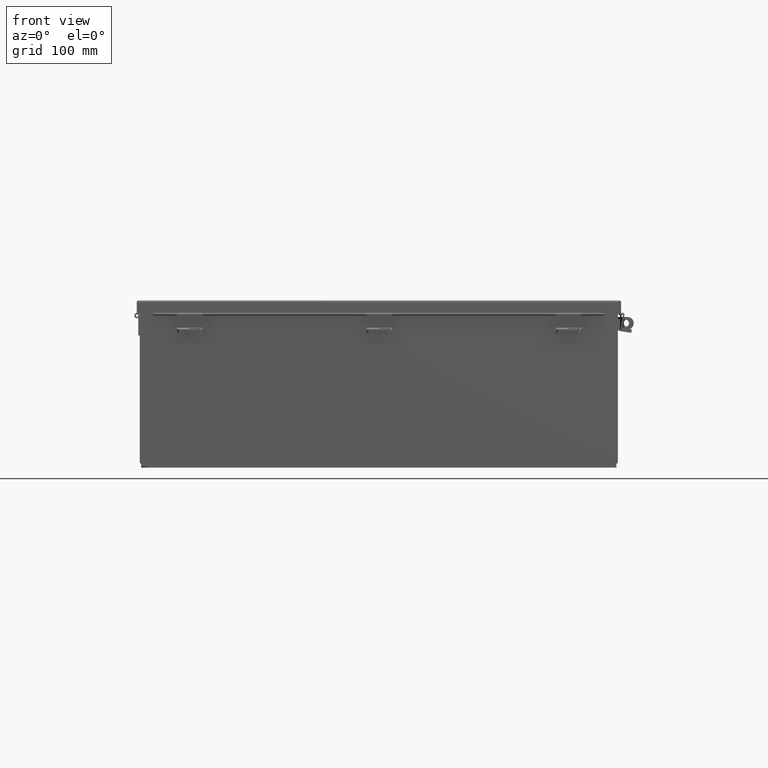
[diagram: clean part render]
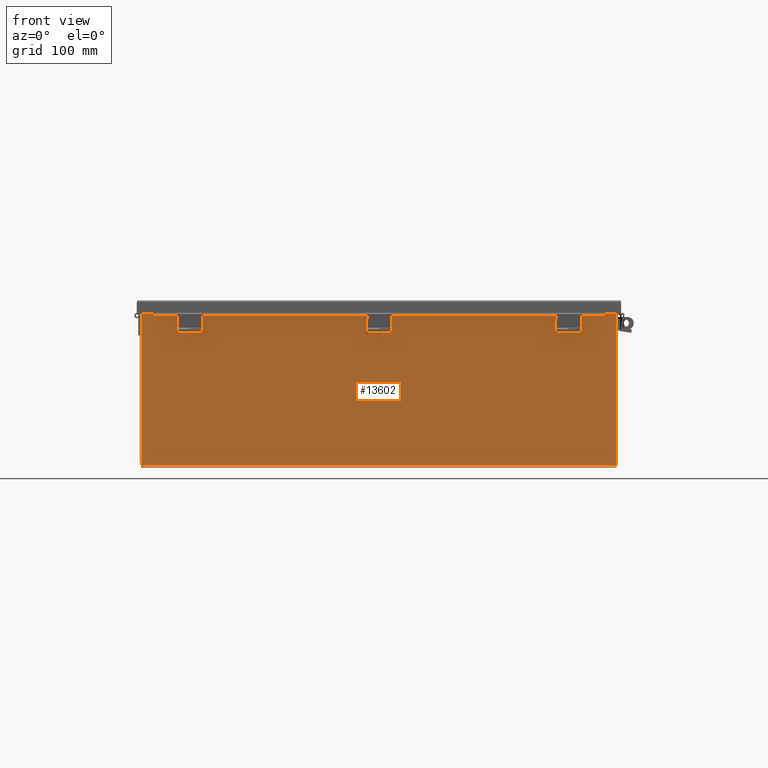
[diagram: same view with one face highlighted and labeled with its STEP entity id]
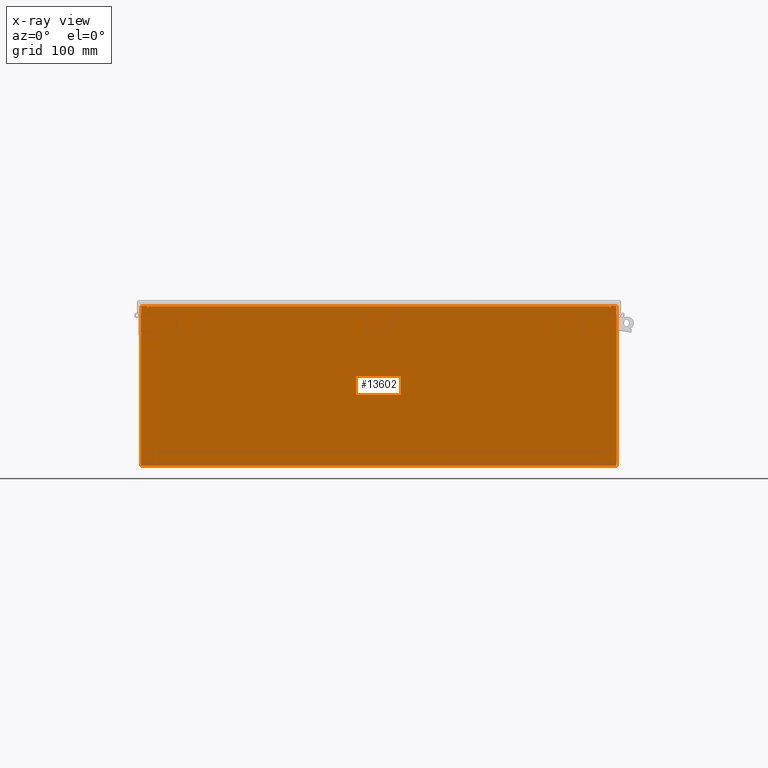
[diagram: x-ray of the same camera — body ghosted, the highlighted face saturated]
A machine part, front view. The second image highlights one B-rep face of the part: STEP entity #13602.
The next image is the same camera in x-ray: the body ghosted, the highlighted face saturated — about 0% of this face is hidden behind the body in this view.
In plain terms, the highlighted planar face has unit normal (-0, 1, -0).
Its self-contained STEP definition (entity closure, byte-faithful):
#53 = VERTEX_POINT ( 'NONE', #2946 ) ;
#373 = CIRCLE ( 'NONE', #23456, 0.01867499999999949400 ) ;
#653 = CARTESIAN_POINT ( 'NONE',  ( -11.92530000000001800, -1.748382715945128500E-014, 3.925300000000000500 ) ) ;
#832 = CARTESIAN_POINT ( 'NONE',  ( -11.92530000000001600, -2.185478394931410600E-015, -4.099299999999995100 ) ) ;
#1511 = LINE ( 'NONE', #24050, #17454 ) ;
#1860 = CARTESIAN_POINT ( 'NONE',  ( -11.61965000000002000, -1.748382715945128500E-014, 3.925299999999999100 ) ) ;
#2495 = VERTEX_POINT ( 'NONE', #19753 ) ;
#2946 = CARTESIAN_POINT ( 'NONE',  ( 11.61964999999998000, 0.0000000000000000000, 3.874949999999997000 ) ) ;
#3230 = VERTEX_POINT ( 'NONE', #21863 ) ;
#3412 = CARTESIAN_POINT ( 'NONE',  ( 11.92529999999998400, 1.748382715945128500E-014, -4.099299999999999500 ) ) ;
#3463 = CARTESIAN_POINT ( 'NONE',  ( 0.0000000000000000000, 0.0000000000000000000, 0.0000000000000000000 ) ) ;
#3557 = VECTOR ( 'NONE', #16045, 39.37007874015748100 ) ;
#3864 = CARTESIAN_POINT ( 'NONE',  ( -11.58230000000002000, -1.092739197465705300E-014, 3.912299999999997000 ) ) ;
#3999 = LINE ( 'NONE', #15146, #8538 ) ;
#4084 = CARTESIAN_POINT ( 'NONE',  ( -11.60097500000002000, -1.748382715945128500E-014, 3.874949999999997900 ) ) ;
#4242 = DIRECTION ( 'NONE',  ( -4.340572780399816900E-014, 0.0000000000000000000, -1.000000000000000000 ) ) ;
#4904 = CARTESIAN_POINT ( 'NONE',  ( 11.92529999999998400, 0.0000000000000000000, 3.925299999999999100 ) ) ;
#5674 = LINE ( 'NONE', #14695, #24817 ) ;
#5751 = VERTEX_POINT ( 'NONE', #832 ) ;
#6015 = DIRECTION ( 'NONE',  ( 0.0000000000000000000, 0.0000000000000000000, -1.000000000000000000 ) ) ;
#6016 = EDGE_CURVE ( 'NONE', #24017, #13681, #20906, .T. ) ;
#7119 = VERTEX_POINT ( 'NONE', #3412 ) ;
#7126 = ORIENTED_EDGE ( 'NONE', *, *, #9171, .T. ) ;
#7516 = CARTESIAN_POINT ( 'NONE',  ( -11.58230000000002000, -1.748382715945128500E-014, 3.874949999999997900 ) ) ;
#7793 = DIRECTION ( 'NONE',  ( 1.000000000000000000, 8.208677865577687000E-017, -0.0000000000000000000 ) ) ;
#7812 = VERTEX_POINT ( 'NONE', #7516 ) ;
#8008 = CARTESIAN_POINT ( 'NONE',  ( 11.60097499999998000, 0.0000000000000000000, 3.874949999999997000 ) ) ;
#8538 = VECTOR ( 'NONE', #17077, 39.37007874015748100 ) ;
#8760 = VERTEX_POINT ( 'NONE', #3864 ) ;
#9144 = FACE_OUTER_BOUND ( 'NONE', #20824, .T. ) ;
#9171 = EDGE_CURVE ( 'NONE', #8760, #2495, #5674, .T. ) ;
#9365 = DIRECTION ( 'NONE',  ( -4.910036603141682400E-031, -1.000000000000000000, -0.0000000000000000000 ) ) ;
#9583 = EDGE_CURVE ( 'NONE', #5751, #24017, #22587, .T. ) ;
#9728 = ORIENTED_EDGE ( 'NONE', *, *, #13620, .F. ) ;
#9934 = DIRECTION ( 'NONE',  ( 0.0000000000000000000, 0.0000000000000000000, -1.000000000000000000 ) ) ;
#9951 = CARTESIAN_POINT ( 'NONE',  ( -11.92530000000001800, -1.748382715945128500E-014, 3.925300000000000500 ) ) ;
#10262 = EDGE_CURVE ( 'NONE', #8760, #7812, #24035, .T. ) ;
#10269 = EDGE_CURVE ( 'NONE', #23958, #12323, #18309, .T. ) ;
#10365 = LINE ( 'NONE', #21165, #19983 ) ;
#10577 = AXIS2_PLACEMENT_3D ( 'NONE', #3463, #9365, #22831 ) ;
#10614 = DIRECTION ( 'NONE',  ( 0.0000000000000000000, 0.0000000000000000000, 1.000000000000000000 ) ) ;
#11044 = CARTESIAN_POINT ( 'NONE',  ( -11.92530000000001800, -1.748382715945128500E-014, 3.925300000000000500 ) ) ;
#11668 = VERTEX_POINT ( 'NONE', #12932 ) ;
#11773 = ORIENTED_EDGE ( 'NONE', *, *, #12695, .F. ) ;
#12197 = CARTESIAN_POINT ( 'NONE',  ( -11.58230000000002000, 0.0000000000000000000, 4.370956789862821100E-015 ) ) ;
#12323 = VERTEX_POINT ( 'NONE', #4904 ) ;
#12661 = EDGE_CURVE ( 'NONE', #7812, #3230, #23915, .T. ) ;
#12695 = EDGE_CURVE ( 'NONE', #23958, #53, #13089, .T. ) ;
#12932 = CARTESIAN_POINT ( 'NONE',  ( 11.58229999999998000, 0.0000000000000000000, 3.874949999999997000 ) ) ;
#13016 = VECTOR ( 'NONE', #13169, 39.37007874015748100 ) ;
#13066 = EDGE_CURVE ( 'NONE', #5751, #7119, #10365, .T. ) ;
#13089 = LINE ( 'NONE', #23362, #17579 ) ;
#13169 = DIRECTION ( 'NONE',  ( 0.0000000000000000000, 0.0000000000000000000, -1.000000000000000000 ) ) ;
#13210 = VECTOR ( 'NONE', #21871, 39.37007874015748100 ) ;
#13602 = ADVANCED_FACE ( 'NONE', ( #9144 ), #20883, .F. ) ;
#13620 = EDGE_CURVE ( 'NONE', #11668, #2495, #3999, .T. ) ;
#13681 = VERTEX_POINT ( 'NONE', #1860 ) ;
#13803 = EDGE_CURVE ( 'NONE', #53, #11668, #373, .T. ) ;
#14162 = EDGE_CURVE ( 'NONE', #12323, #7119, #18114, .T. ) ;
#14695 = CARTESIAN_POINT ( 'NONE',  ( -11.58230000000002000, -1.092739197465705300E-014, 3.912299999999997000 ) ) ;
#14939 = ORIENTED_EDGE ( 'NONE', *, *, #12661, .F. ) ;
#15044 = EDGE_CURVE ( 'NONE', #3230, #13681, #1511, .T. ) ;
#15146 = CARTESIAN_POINT ( 'NONE',  ( 11.58229999999998000, 0.0000000000000000000, 0.0000000000000000000 ) ) ;
#16045 = DIRECTION ( 'NONE',  ( 0.0000000000000000000, 0.0000000000000000000, -1.000000000000000000 ) ) ;
#16830 = VECTOR ( 'NONE', #19603, 39.37007874015748100 ) ;
#17077 = DIRECTION ( 'NONE',  ( 0.0000000000000000000, 0.0000000000000000000, 1.000000000000000000 ) ) ;
#17454 = VECTOR ( 'NONE', #10614, 39.37007874015748100 ) ;
#17529 = DIRECTION ( 'NONE',  ( 4.910036603141682400E-031, 1.000000000000000000, -0.0000000000000000000 ) ) ;
#17579 = VECTOR ( 'NONE', #4242, 39.37007874015748100 ) ;
#17615 = AXIS2_PLACEMENT_3D ( 'NONE', #4084, #17529, #6015 ) ;
#18114 = LINE ( 'NONE', #18872, #13016 ) ;
#18309 = LINE ( 'NONE', #653, #13210 ) ;
#18570 = DIRECTION ( 'NONE',  ( 1.000000000000000000, 4.910036603141682400E-031, -0.0000000000000000000 ) ) ;
#18872 = CARTESIAN_POINT ( 'NONE',  ( 11.92529999999998400, 0.0000000000000000000, 3.925299999999999100 ) ) ;
#19337 = ORIENTED_EDGE ( 'NONE', *, *, #15044, .F. ) ;
#19603 = DIRECTION ( 'NONE',  ( 0.0000000000000000000, 0.0000000000000000000, 1.000000000000000000 ) ) ;
#19622 = ORIENTED_EDGE ( 'NONE', *, *, #6016, .T. ) ;
#19663 = ORIENTED_EDGE ( 'NONE', *, *, #13066, .F. ) ;
#19753 = CARTESIAN_POINT ( 'NONE',  ( 11.58229999999998000, 0.0000000000000000000, 3.912299999999997900 ) ) ;
#19983 = VECTOR ( 'NONE', #7793, 39.37007874015748100 ) ;
#20291 = VECTOR ( 'NONE', #22641, 39.37007874015748100 ) ;
#20669 = ORIENTED_EDGE ( 'NONE', *, *, #10262, .F. ) ;
#20824 = EDGE_LOOP ( 'NONE', ( #19337, #14939, #20669, #7126, #9728, #23792, #11773, #22153, #22570, #19663, #24660, #19622 ) ) ;
#20883 = PLANE ( 'NONE',  #10577 ) ;
#20906 = LINE ( 'NONE', #11044, #20291 ) ;
#21165 = CARTESIAN_POINT ( 'NONE',  ( -11.92530000000001800, -2.185478394931410600E-015, -4.099299999999995100 ) ) ;
#21457 = DIRECTION ( 'NONE',  ( 4.910036603141682400E-031, 1.000000000000000000, -0.0000000000000000000 ) ) ;
#21836 = CARTESIAN_POINT ( 'NONE',  ( 11.61964999999998000, 0.0000000000000000000, 3.925300000000000500 ) ) ;
#21863 = CARTESIAN_POINT ( 'NONE',  ( -11.61965000000002000, -1.748382715945128500E-014, 3.874949999999997900 ) ) ;
#21871 = DIRECTION ( 'NONE',  ( 1.000000000000000000, 4.910036603141682400E-031, 0.0000000000000000000 ) ) ;
#21994 = CARTESIAN_POINT ( 'NONE',  ( -11.92530000000001800, -1.748382715945128500E-014, 3.925300000000000500 ) ) ;
#22153 = ORIENTED_EDGE ( 'NONE', *, *, #10269, .T. ) ;
#22570 = ORIENTED_EDGE ( 'NONE', *, *, #14162, .T. ) ;
#22587 = LINE ( 'NONE', #9951, #16830 ) ;
#22641 = DIRECTION ( 'NONE',  ( 1.000000000000000000, 4.910036603141682400E-031, 0.0000000000000000000 ) ) ;
#22831 = DIRECTION ( 'NONE',  ( 0.0000000000000000000, 0.0000000000000000000, -1.000000000000000000 ) ) ;
#23362 = CARTESIAN_POINT ( 'NONE',  ( 11.61964999999981200, 0.0000000000000000000, -5.042991396304229400E-013 ) ) ;
#23456 = AXIS2_PLACEMENT_3D ( 'NONE', #8008, #21457, #9934 ) ;
#23792 = ORIENTED_EDGE ( 'NONE', *, *, #13803, .F. ) ;
#23915 = CIRCLE ( 'NONE', #17615, 0.01867499999999949400 ) ;
#23958 = VERTEX_POINT ( 'NONE', #21836 ) ;
#24017 = VERTEX_POINT ( 'NONE', #21994 ) ;
#24035 = LINE ( 'NONE', #12197, #3557 ) ;
#24050 = CARTESIAN_POINT ( 'NONE',  ( -11.61965000000002000, 0.0000000000000000000, 4.370956789862821100E-015 ) ) ;
#24660 = ORIENTED_EDGE ( 'NONE', *, *, #9583, .T. ) ;
#24817 = VECTOR ( 'NONE', #18570, 39.37007874015748100 ) ;